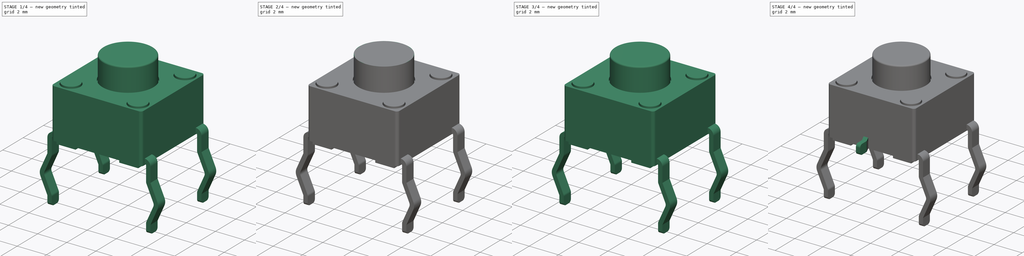
[diagram: build sequence overview — one tinted view per stage of 4, left to right]
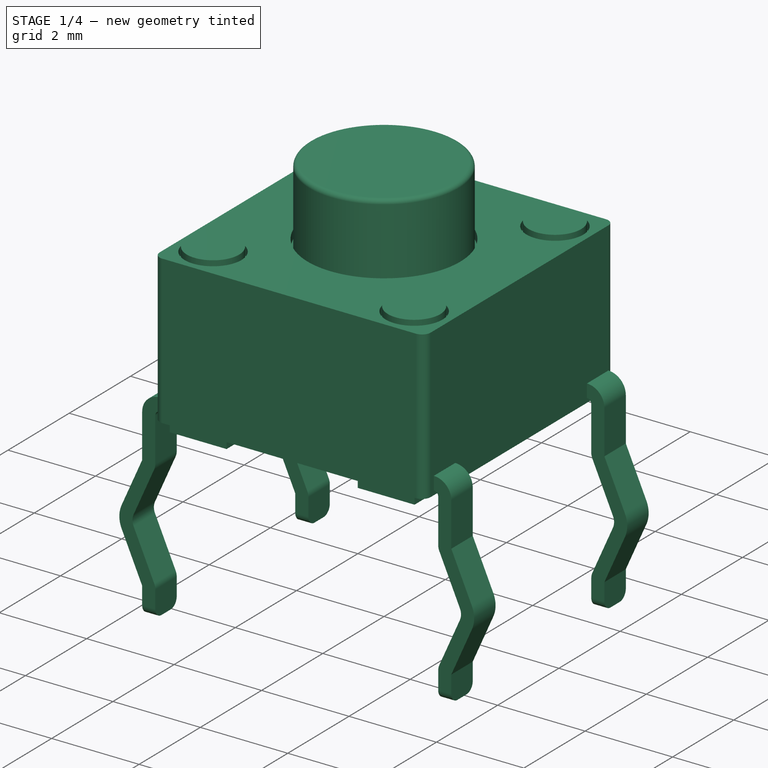
[diagram: stage 1 of 4 — iso view after this stage's code; geometry added in this stage tinted green]
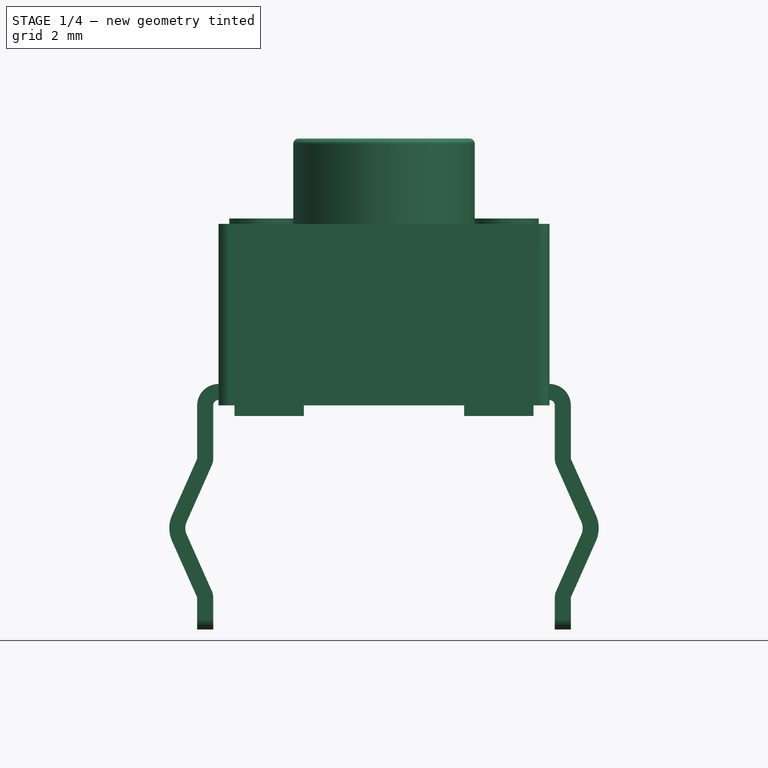
[diagram: stage 1 of 4 — front view after this stage's code; geometry added in this stage tinted green]
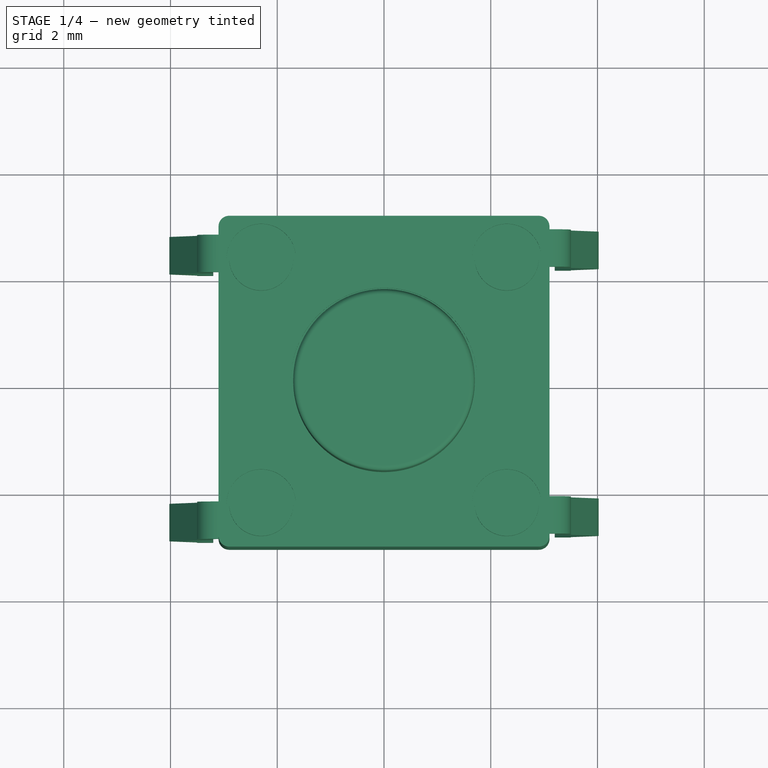
[diagram: stage 1 of 4 — top view after this stage's code; geometry added in this stage tinted green]
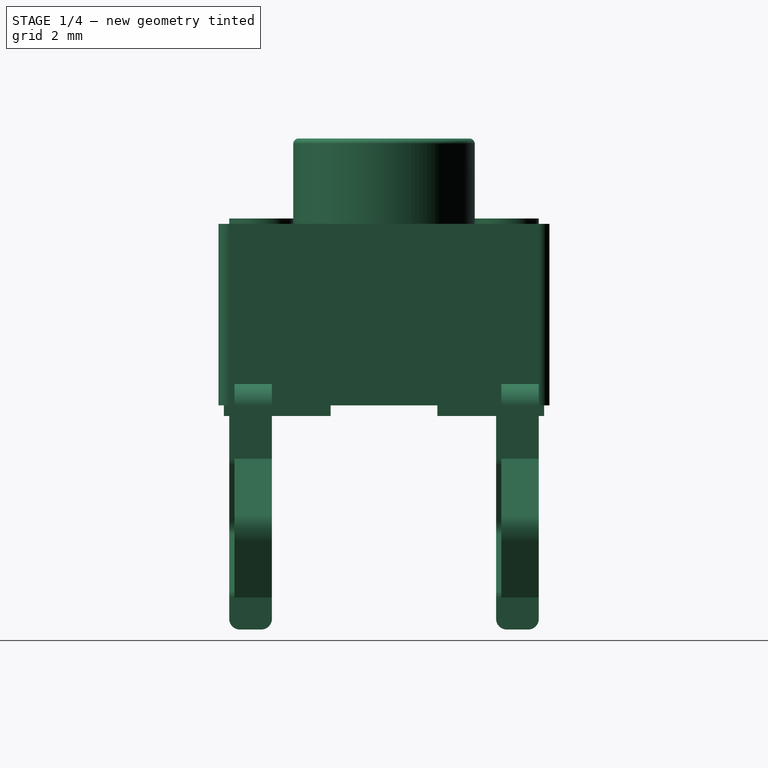
[diagram: stage 1 of 4 — right view after this stage's code; geometry added in this stage tinted green]
FCSTD DOCUMENT  (FreeCAD 0.14R3702 (Git))
Label: pushbutton-mini
License: CC-BY 3.0
LicenseURL: http://creativecommons.org/licenses/by/3.0/
objects: Sketcher::SketchObject×6, PartDesign::Pad×6, Part::Feature×6, App::DocumentObjectGroup×3, Part::Fillet×2, Part::Compound×1
note: 27 computed .brp shape members not serialized (recipe doc carries the construction recipe); baked Part::Feature solids carry a one-line shape summary decoded from their .brp

FEATURE [Sketcher::SketchObject] Sketch  label="main-body-sketch"
  sketch-geometry (8):
    g0: LineSegment StartX=-2.9 StartY=3.1 StartZ=0 EndX=2.9 EndY=3.1 EndZ=0
    g1: LineSegment StartX=3.1 StartY=2.9 StartZ=0 EndX=3.1 EndY=-2.9 EndZ=0
    g2: LineSegment StartX=2.9 StartY=-3.1 StartZ=0 EndX=-2.9 EndY=-3.1 EndZ=0
    g3: LineSegment StartX=-3.1 StartY=-2.9 StartZ=0 EndX=-3.1 EndY=2.9 EndZ=0
    g4: ArcOfCircle CenterX=-2.9 CenterY=2.9 CenterZ=0 NormalX=0 NormalY=0 NormalZ=1 Radius=0.2 StartAngle=1.5708 EndAngle=3.14159
    g5: ArcOfCircle CenterX=2.9 CenterY=2.9 CenterZ=0 NormalX=0 NormalY=0 NormalZ=1 Radius=0.2 StartAngle=0 EndAngle=1.5708
    g6: ArcOfCircle CenterX=2.9 CenterY=-2.9 CenterZ=0 NormalX=0 NormalY=0 NormalZ=1 Radius=0.2 StartAngle=4.71239 EndAngle=6.28319
    g7: ArcOfCircle CenterX=-2.9 CenterY=-2.9 CenterZ=0 NormalX=0 NormalY=0 NormalZ=1 Radius=0.2 StartAngle=3.14159 EndAngle=4.71239
  constraints (19):
    c: Horizontal(g0)
    c: Horizontal(g2)
    c: Vertical(g1)
    c: Vertical(g3)
    c: Equal(g0,g1)
    c: Tangent(g0,g4)
    c: Tangent(g3,g4)
    c: Radius(g4) = 0.2
    c: Tangent(g0,g5)
    c: Tangent(g1,g5)
    c: Tangent(g1,g6)
    c: Tangent(g2,g6)
    c: Tangent(g2,g7)
    c: Tangent(g3,g7)
    c: Symmetric(g4,g6,g-1)
    c: Equal(g5,g4)
    c: Equal(g4,g7)
    c: Equal(g7,g6)
    c: DistanceX(g3,g1) = 6.2
FEATURE [PartDesign::Pad] Pad  label="main-body"
  Length = 3.2
  Length2 = 100
  Sketch = -> Sketch
  Type = 0
FEATURE [App::DocumentObjectGroup] Group  label="button-body-src"
  Group = -> [Pad,Pad001,Pad002,Pad003,Fillet005]
FEATURE [Part::Feature] Fillet006  label="button-body"
  shape: bbox 6.2 x 6.2 x 5.2 mm, 41 faces (baked)
FEATURE [Part::Compound] Compound  label="pushbutton-mini"
  Links = -> [Fillet006,Fillet003,Fillet001,Fillet002,Fillet004,Pad003004]
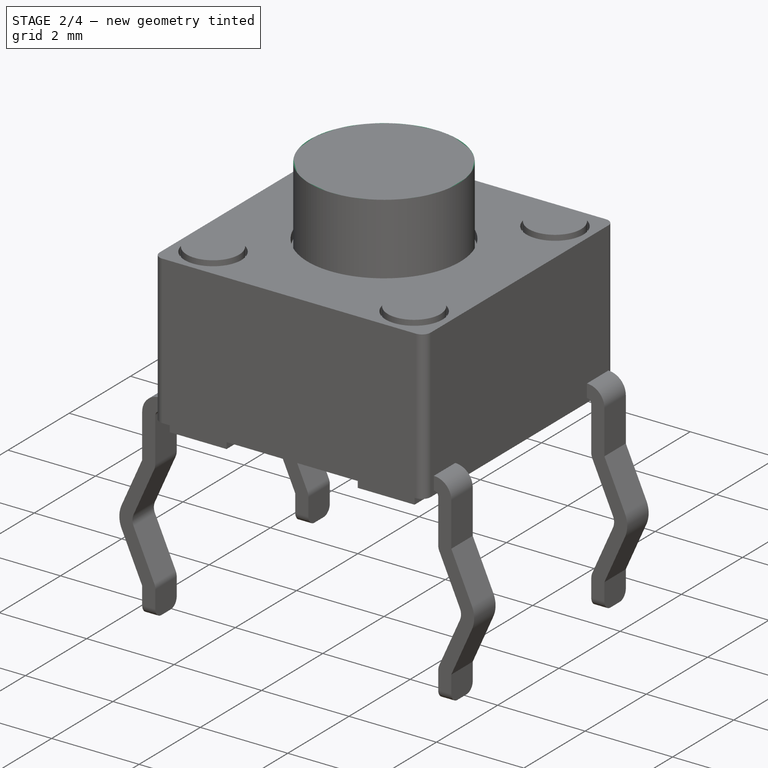
[diagram: stage 2 of 4 — iso view after this stage's code; geometry added in this stage tinted green]
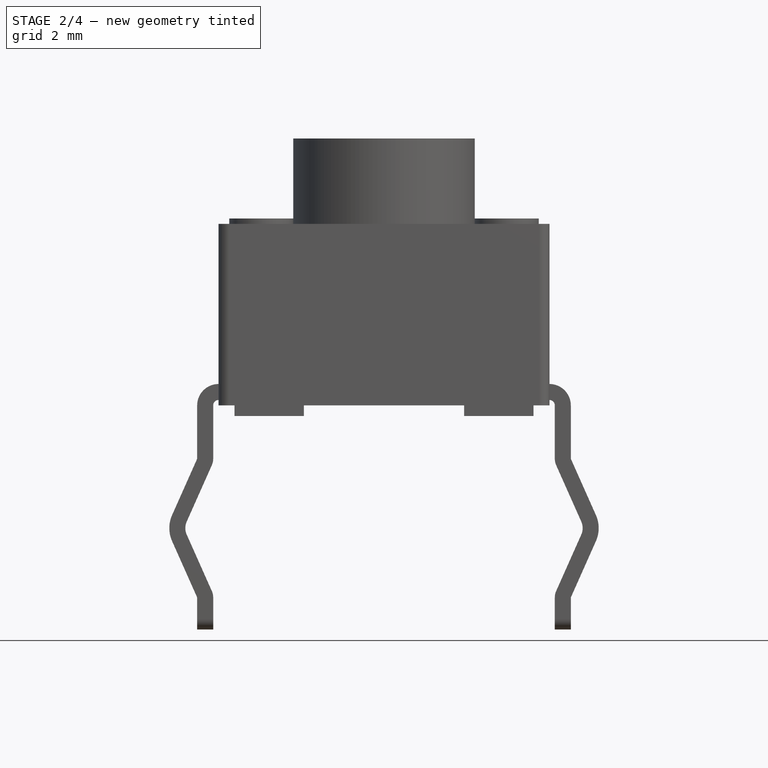
[diagram: stage 2 of 4 — front view after this stage's code; geometry added in this stage tinted green]
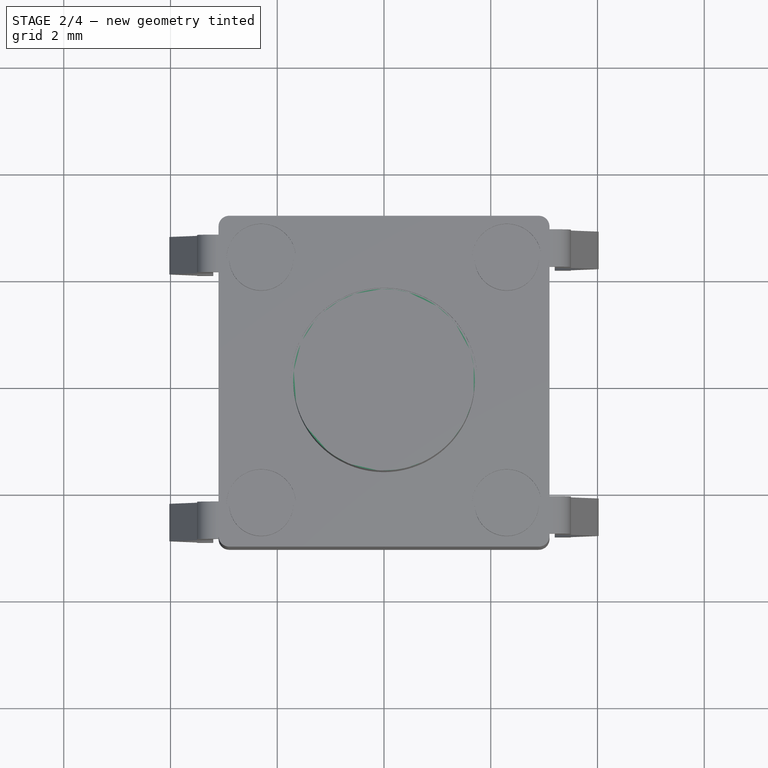
[diagram: stage 2 of 4 — top view after this stage's code; geometry added in this stage tinted green]
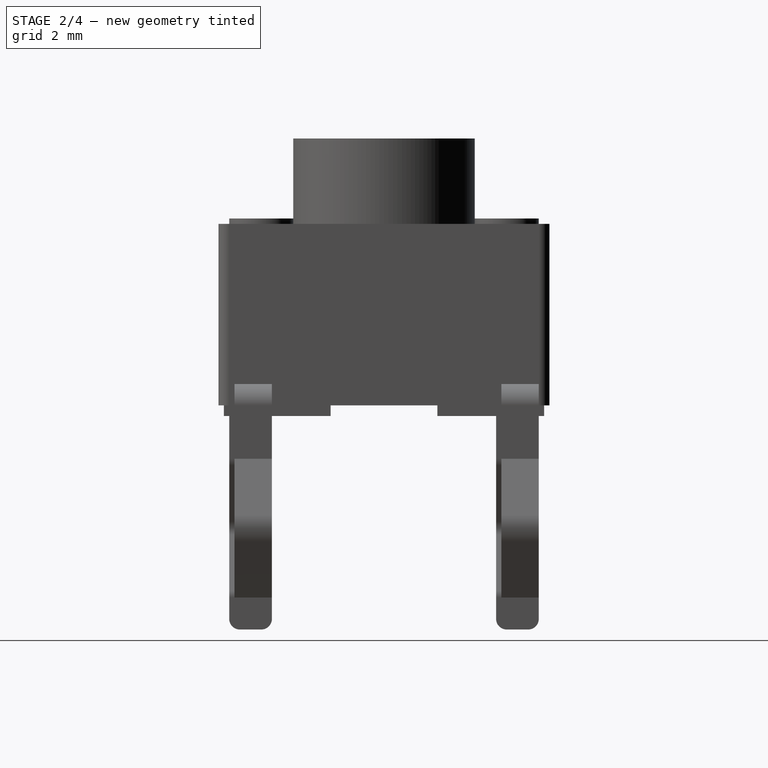
[diagram: stage 2 of 4 — right view after this stage's code; geometry added in this stage tinted green]
FEATURE [Sketcher::SketchObject] Sketch001  label="bottom-legs-sketch"
  ExternalGeometry = -> [Pad]
  Placement = pos=(0,0,0) rot=(1,0,0;3.14159rad)
  Support = -> Pad [Face9]
  sketch-geometry (16):
    g0: LineSegment StartX=-2.8 StartY=3 StartZ=0 EndX=-1.5 EndY=3 EndZ=0
    g1: LineSegment StartX=-1.5 StartY=3 StartZ=0 EndX=-1.5 EndY=1 EndZ=0
    g2: LineSegment StartX=-1.5 StartY=1 StartZ=0 EndX=-2.8 EndY=1 EndZ=0
    g3: LineSegment StartX=-2.8 StartY=1 StartZ=0 EndX=-2.8 EndY=3 EndZ=0
    g4: LineSegment StartX=1.5 StartY=3 StartZ=0 EndX=2.8 EndY=3 EndZ=0
    g5: LineSegment StartX=2.8 StartY=3 StartZ=0 EndX=2.8 EndY=1 EndZ=0
    g6: LineSegment StartX=2.8 StartY=1 StartZ=0 EndX=1.5 EndY=1 EndZ=0
    g7: LineSegment StartX=1.5 StartY=1 StartZ=0 EndX=1.5 EndY=3 EndZ=0
    g8: LineSegment StartX=-2.8 StartY=-1 StartZ=0 EndX=-1.5 EndY=-1 EndZ=0
    g9: LineSegment StartX=-1.5 StartY=-1 StartZ=0 EndX=-1.5 EndY=-3 EndZ=0
    g10: LineSegment StartX=-1.5 StartY=-3 StartZ=0 EndX=-2.8 EndY=-3 EndZ=0
    g11: LineSegment StartX=-2.8 StartY=-3 StartZ=0 EndX=-2.8 EndY=-1 EndZ=0
    g12: LineSegment StartX=1.5 StartY=-1 StartZ=0 EndX=2.8 EndY=-1 EndZ=0
    g13: LineSegment StartX=2.8 StartY=-1 StartZ=0 EndX=2.8 EndY=-3 EndZ=0
    g14: LineSegment StartX=2.8 StartY=-3 StartZ=0 EndX=1.5 EndY=-3 EndZ=0
    g15: LineSegment StartX=1.5 StartY=-3 StartZ=0 EndX=1.5 EndY=-1 EndZ=0
  constraints (45):
    c: Coincident(g0,g1)
    c: Coincident(g1,g2)
    c: Coincident(g2,g3)
    c: Coincident(g3,g0)
    c: Horizontal(g0)
    c: Horizontal(g2)
    c: Vertical(g1)
    c: Vertical(g3)
    c: DistanceX(g0) = 1.3
    c: DistanceY(g1) = -2
    c: DistanceX(g-3,g2) = 0.3
    c: DistanceY(g0,g-4) = 0.1
    c: Coincident(g4,g5)
    c: Coincident(g5,g6)
    c: Coincident(g6,g7)
    c: Coincident(g7,g4)
    c: Horizontal(g4)
    c: Horizontal(g6)
    c: Vertical(g5)
    c: Vertical(g7)
    c: Coincident(g8,g9)
    c: Coincident(g9,g10)
    c: Coincident(g10,g11)
    c: Coincident(g11,g8)
    c: Horizontal(g8)
    c: Horizontal(g10)
    c: Vertical(g9)
    c: Vertical(g11)
    c: Coincident(g12,g13)
    c: Coincident(g13,g14)
    c: Coincident(g14,g15)
    c: Coincident(g15,g12)
    c: Horizontal(g12)
    c: Horizontal(g14)
    c: Vertical(g13)
    c: Vertical(g15)
    c: Equal(g0,g4)
    c: Equal(g4,g12)
    c: Equal(g12,g8)
    c: Equal(g1,g7)
    c: Equal(g7,g9)
    c: Equal(g9,g15)
    c: Symmetric(g0,g10,g-1)
    c: Symmetric(g13,g10,g-2)
    c: Symmetric(g4,g13,g-1)
FEATURE [PartDesign::Pad] Pad001  label="botom-legs"
  Length = 0.2
  Length2 = 100
  Sketch = -> Sketch001
  Type = 0
FEATURE [Sketcher::SketchObject] Sketch002  label="button-sketch"
  Placement = pos=(0,0,3.2) rot=(0,0,1;0rad)
  Support = -> Pad001 [Face5]
  sketch-geometry (1):
    g0: Circle CenterX=0 CenterY=0 CenterZ=0 NormalX=0 NormalY=0 NormalZ=1 Radius=1.7
  constraints (2):
    c: Radius(g0) = 1.7
    c: Coincident(g0,g-1)
FEATURE [PartDesign::Pad] Pad002  label="button"
  Length = 1.8
  Length2 = 100
  Sketch = -> Sketch002
  Type = 0
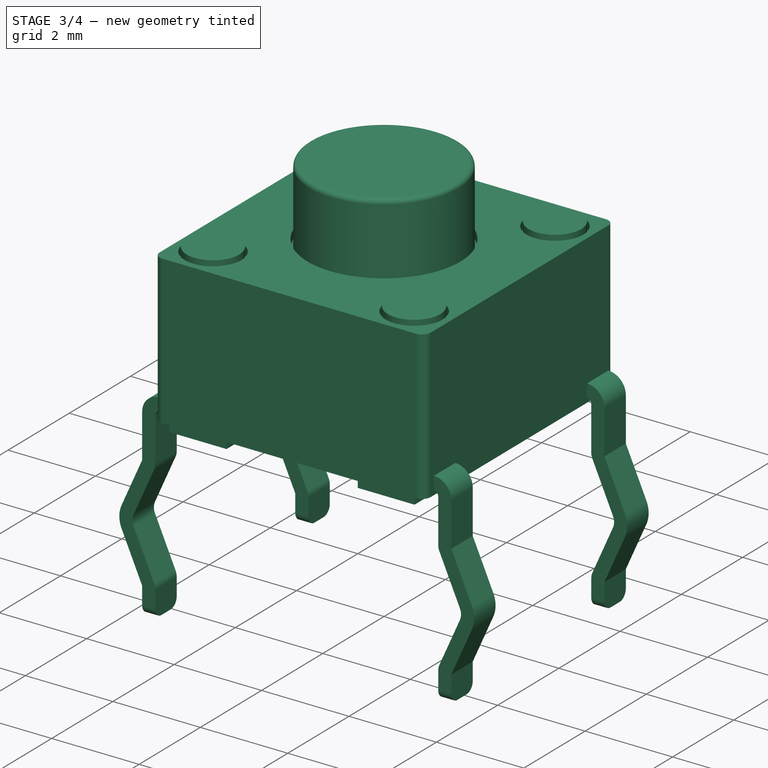
[diagram: stage 3 of 4 — iso view after this stage's code; geometry added in this stage tinted green]
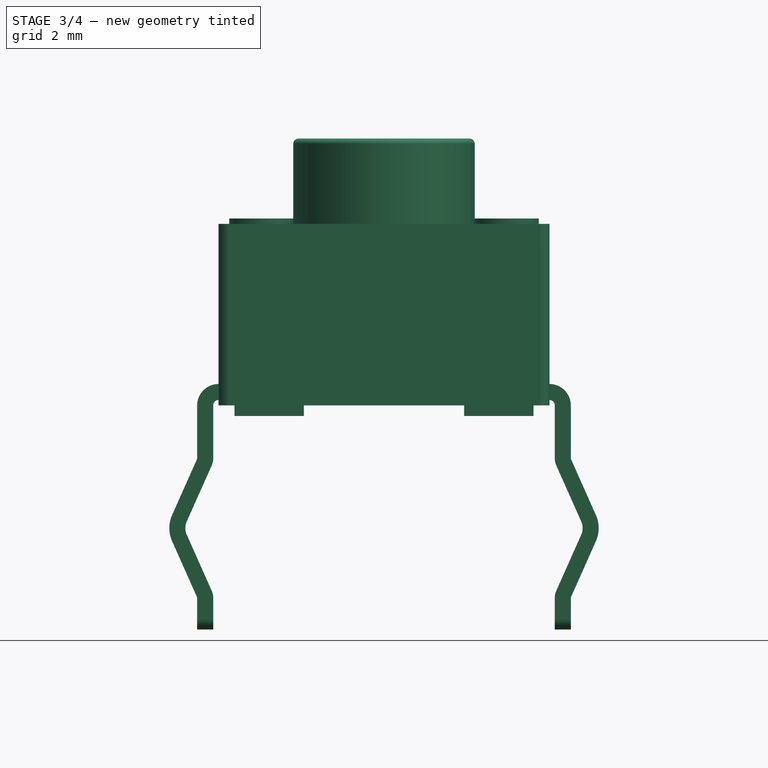
[diagram: stage 3 of 4 — front view after this stage's code; geometry added in this stage tinted green]
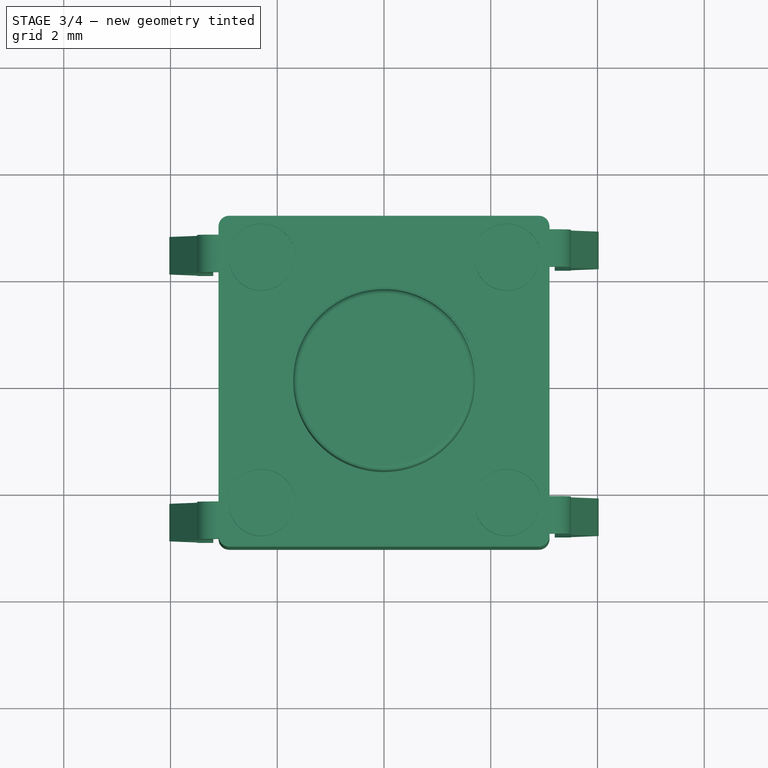
[diagram: stage 3 of 4 — top view after this stage's code; geometry added in this stage tinted green]
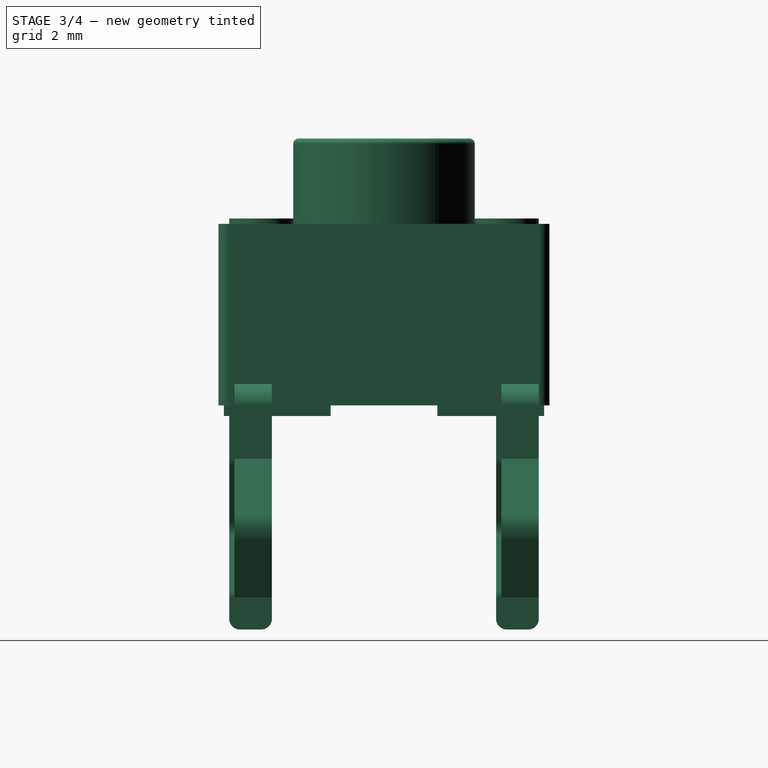
[diagram: stage 3 of 4 — right view after this stage's code; geometry added in this stage tinted green]
FEATURE [Sketcher::SketchObject] Sketch003  label="top-pins-sketch"
  ExternalGeometry = -> [Pad002]
  Placement = pos=(0,0,3.2) rot=(0,0,1;0rad)
  Support = -> Pad002 [Face5]
  sketch-geometry (4):
    g0: Circle CenterX=-2.3 CenterY=2.3 CenterZ=0 NormalX=0 NormalY=0 NormalZ=1 Radius=0.6
    g1: Circle CenterX=2.3 CenterY=2.3 CenterZ=0 NormalX=0 NormalY=0 NormalZ=1 Radius=0.6
    g2: Circle CenterX=-2.3 CenterY=-2.3 CenterZ=0 NormalX=0 NormalY=0 NormalZ=1 Radius=0.6
    g3: Circle CenterX=2.3 CenterY=-2.3 CenterZ=0 NormalX=0 NormalY=0 NormalZ=1 Radius=0.6
  constraints (9):
    c: Radius(g0) = 0.6
    c: DistanceX(g0,g-3) = -0.8
    c: DistanceY(g0,g-4) = 0.8
    c: Equal(g0,g1)
    c: Equal(g1,g3)
    c: Equal(g3,g2)
    c: Symmetric(g0,g1,g-2)
    c: Symmetric(g0,g2,g-1)
    c: Symmetric(g2,g3,g-2)
FEATURE [PartDesign::Pad] Pad003  label="top-pins"
  Length = 0.3
  Length2 = 100
  Sketch = -> Sketch003
  Type = 0
FEATURE [Part::Feature] Fillet001  label="pin-1"
  Placement = pos=(-3.2,-2.2,0) rot=(1,0,0;1.5708rad)
  shape: bbox 0.922 x 0.7 x 4.6 mm, 20 faces (baked)
FEATURE [Part::Feature] Fillet002  label="pin-002"
  Placement = pos=(-3.2,2.8,0) rot=(1,0,0;1.5708rad)
  shape: bbox 0.922 x 0.7 x 4.6 mm, 20 faces (baked)
FEATURE [Part::Feature] Fillet003  label="pin-003"
  Placement = pos=(3.2,-2.8,0) rot=(0,0.707107,0.707107;3.14159rad)
  shape: bbox 0.922 x 0.7 x 4.6 mm, 20 faces (baked)
FEATURE [Part::Feature] Fillet004  label="pin-004"
  Placement = pos=(3.2,2.2,0) rot=(0,0.707107,0.707107;3.14159rad)
  shape: bbox 0.922 x 0.7 x 4.6 mm, 20 faces (baked)
FEATURE [Sketcher::SketchObject] Sketch005  label="top-metal-plate-sketch"
  Placement = pos=(0,0,3.2) rot=(0,0,1;0rad)
  sketch-geometry (13):
    g0: LineSegment StartX=-2.9 StartY=3.1 StartZ=0 EndX=2.9 EndY=3.1 EndZ=0
    g1: LineSegment StartX=3.1 StartY=2.9 StartZ=0 EndX=3.1 EndY=-2.9 EndZ=0
    g2: LineSegment StartX=2.9 StartY=-3.1 StartZ=0 EndX=-2.9 EndY=-3.1 EndZ=0
    g3: LineSegment StartX=-3.1 StartY=-2.9 StartZ=0 EndX=-3.1 EndY=2.9 EndZ=0
    g4: ArcOfCircle CenterX=-2.9 CenterY=2.9 CenterZ=0 NormalX=0 NormalY=0 NormalZ=1 Radius=0.2 StartAngle=1.5708 EndAngle=3.14159
    g5: ArcOfCircle CenterX=2.9 CenterY=2.9 CenterZ=0 NormalX=0 NormalY=0 NormalZ=1 Radius=0.2 StartAngle=0 EndAngle=1.5708
    g6: ArcOfCircle CenterX=2.9 CenterY=-2.9 CenterZ=0 NormalX=0 NormalY=0 NormalZ=1 Radius=0.2 StartAngle=4.71239 EndAngle=6.28319
    g7: ArcOfCircle CenterX=-2.9 CenterY=-2.9 CenterZ=0 NormalX=0 NormalY=0 NormalZ=1 Radius=0.2 StartAngle=3.14159 EndAngle=4.71239
    g8: Circle CenterX=0 CenterY=0 CenterZ=0 NormalX=0 NormalY=0 NormalZ=1 Radius=1.75
    g9: Circle CenterX=-2.3 CenterY=2.3 CenterZ=0 NormalX=0 NormalY=0 NormalZ=1 Radius=0.65
    g10: Circle CenterX=2.3 CenterY=2.3 CenterZ=0 NormalX=0 NormalY=0 NormalZ=1 Radius=0.65
    g11: Circle CenterX=-2.3 CenterY=-2.3 CenterZ=0 NormalX=0 NormalY=0 NormalZ=1 Radius=0.65
    g12: Circle CenterX=2.3 CenterY=-2.3 CenterZ=0 NormalX=0 NormalY=0 NormalZ=1 Radius=0.65
  constraints (30):
    c: Horizontal(g0)
    c: Horizontal(g2)
    c: Vertical(g1)
    c: Vertical(g3)
    c: Tangent(g0,g4)
    c: Tangent(g3,g4)
    c: Tangent(g0,g5)
    c: Tangent(g1,g5)
    c: Tangent(g1,g6)
    c: Tangent(g2,g6)
    c: Tangent(g2,g7)
    c: Tangent(g3,g7)
    c: Symmetric(g4,g6,g-1)
    c: Radius(g4) = 0.2
    c: Equal(g4,g5)
    c: Equal(g5,g6)
    c: Equal(g6,g7)
    c: DistanceX(g3,g1) = 6.2
    c: Equal(g0,g3)
    c: Coincident(g8,g-1)
    c: Radius(g8) = 1.75
    c: DistanceX(g3,g9) = 0.8
    c: Radius(g9) = 0.65
    c: DistanceY(g9,g0) = 0.8
    c: Equal(g9,g10)
    c: Equal(g10,g12)
    c: Equal(g12,g11)
    c: Symmetric(g9,g10,g-2)
    c: Symmetric(g9,g11,g-1)
    c: Symmetric(g11,g12,g-2)
FEATURE [App::DocumentObjectGroup] Group001  label="pin-src"
  Group = -> [Fillet]
FEATURE [PartDesign::Pad] Pad003003  label="top-metal-plate"
  Length = 0.2
  Length2 = 100
  Placement = pos=(0,0,3.2) rot=(0,0,1;0rad)
  Sketch = -> Sketch005
  Type = 0
FEATURE [App::DocumentObjectGroup] Group002  label="top-metal-plate-src"
  Group = -> [Pad003003]
FEATURE [Part::Feature] Pad003004  label="top-metal-plate001"
  Placement = pos=(0,0,3.2) rot=(0,0,1;0rad)
  shape: bbox 6.2 x 6.2 x 0.2 mm, 15 faces (baked)
FEATURE [Part::Fillet] Fillet005
  Base = -> Pad003
  Edges = 1 edges r=0.1: [Edge79]
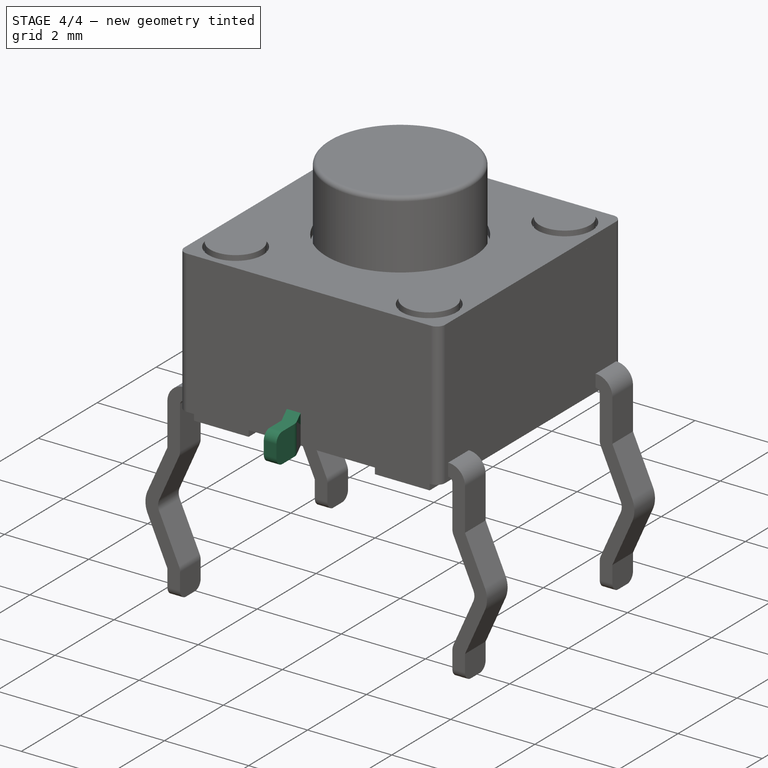
[diagram: stage 4 of 4 — iso view after this stage's code; geometry added in this stage tinted green]
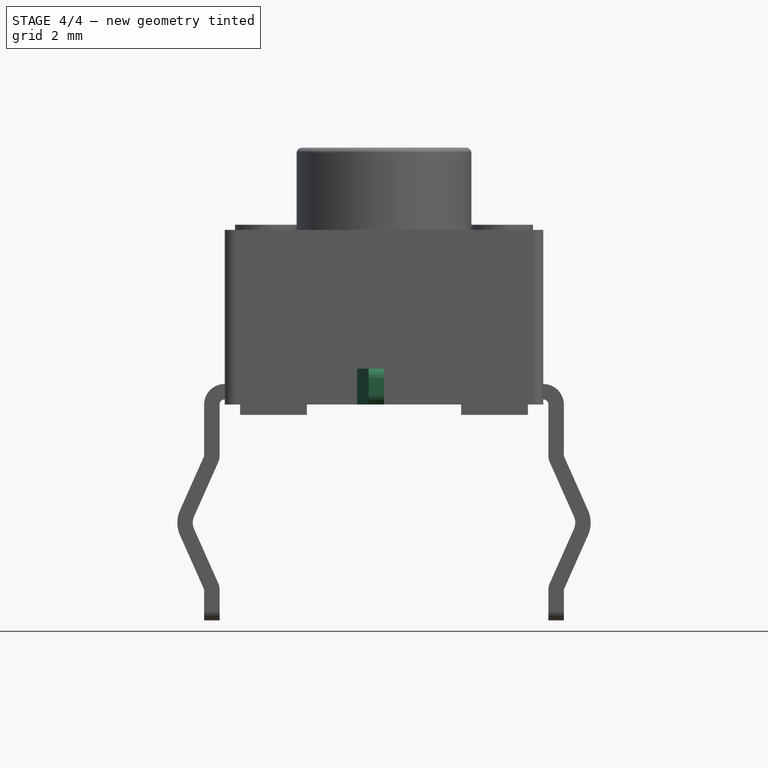
[diagram: stage 4 of 4 — front view after this stage's code; geometry added in this stage tinted green]
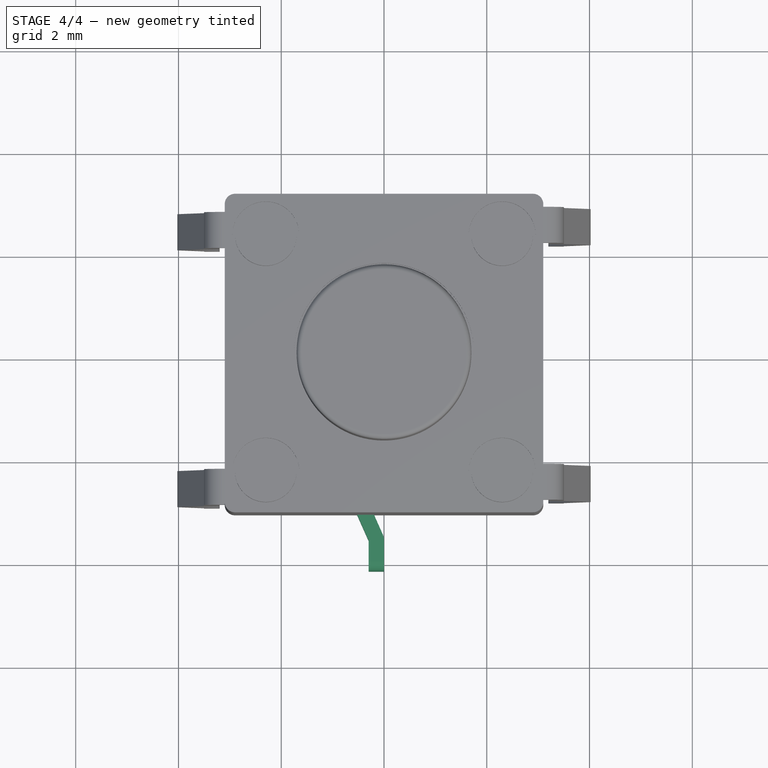
[diagram: stage 4 of 4 — top view after this stage's code; geometry added in this stage tinted green]
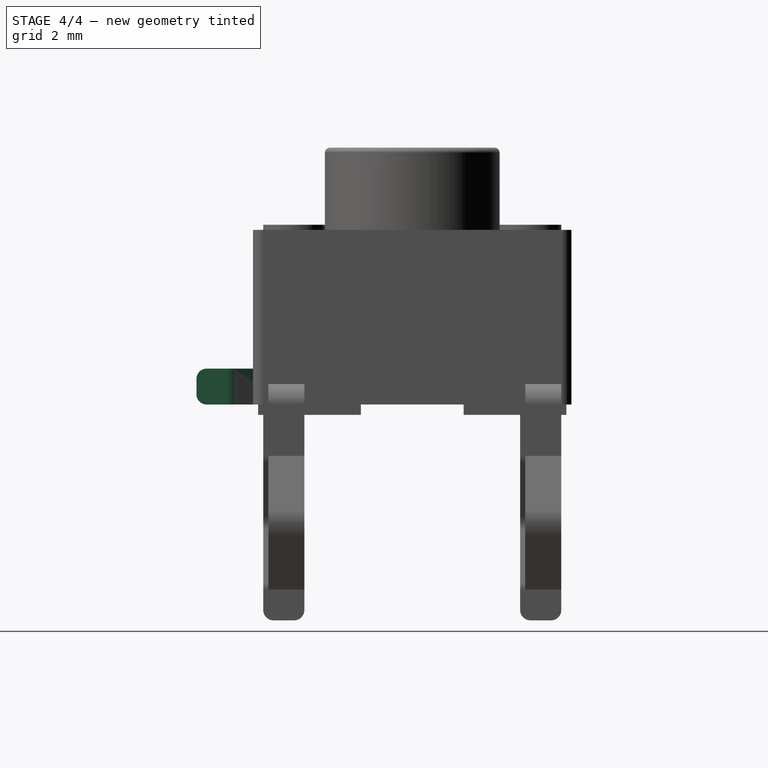
[diagram: stage 4 of 4 — right view after this stage's code; geometry added in this stage tinted green]
FEATURE [Sketcher::SketchObject] Sketch004
  sketch-geometry (19):
    g0: LineSegment StartX=0 StartY=0 StartZ=0 EndX=0 EndY=-1 EndZ=0
    g1: LineSegment StartX=-0.0259364 StartY=-1.12202 StartZ=0 EndX=-0.496079 EndY=-2.17798 EndZ=0
    g2: LineSegment StartX=-0.496079 StartY=-2.42202 StartZ=0 EndX=-0.0259364 EndY=-3.47798 EndZ=0
    g3: LineSegment StartX=0 StartY=-3.6 StartZ=0 EndX=0 EndY=-4.2 EndZ=0
    g4: ArcOfCircle CenterX=0.1 CenterY=0 CenterZ=0 NormalX=0 NormalY=0 NormalZ=1 Radius=0.1 StartAngle=1.5708 EndAngle=3.14159
    g5: LineSegment [constr] StartX=0.1 StartY=0.1 StartZ=0 EndX=0.1 EndY=0 EndZ=0
    g6: ArcOfCircle CenterX=0.1 CenterY=0 CenterZ=0 NormalX=0 NormalY=0 NormalZ=1 Radius=0.4 StartAngle=1.5708 EndAngle=3.14159
    g7: LineSegment StartX=0.1 StartY=0.4 StartZ=0 EndX=0.1 EndY=0.1 EndZ=0
    g8: LineSegment [constr] StartX=0 StartY=-2.3 StartZ=0 EndX=1.16033 EndY=-2.3 EndZ=0
    g9: ArcOfCircle CenterX=-0.222016 CenterY=-2.3 CenterZ=0 NormalX=0 NormalY=0 NormalZ=1 Radius=0.3 StartAngle=2.72271 EndAngle=3.56047
    g10: LineSegment StartX=-0.3 StartY=0 StartZ=0 EndX=-0.3 EndY=-1 EndZ=0
    g11: LineSegment StartX=-0.3 StartY=-1 StartZ=0 EndX=-0.770143 EndY=-2.05596 EndZ=0
    g12: LineSegment [constr] StartX=0.368042 StartY=0.500446 StartZ=0 EndX=0.642105 EndY=0.378425 EndZ=0
    g13: ArcOfCircle CenterX=-0.3 CenterY=-1 CenterZ=0 NormalX=0 NormalY=0 NormalZ=1 Radius=0.3 StartAngle=5.86431 EndAngle=6.28319
    g14: LineSegment StartX=-0.770143 StartY=-2.54404 StartZ=0 EndX=-0.3 EndY=-3.6 EndZ=0
    g15: ArcOfCircle CenterX=-0.222016 CenterY=-2.3 CenterZ=0 NormalX=0 NormalY=0 NormalZ=1 Radius=0.6 StartAngle=2.72271 EndAngle=3.56047
    g16: LineSegment StartX=0 StartY=-4.2 StartZ=0 EndX=-0.3 EndY=-4.2 EndZ=0
    g17: LineSegment StartX=-0.3 StartY=-4.2 StartZ=0 EndX=-0.3 EndY=-3.6 EndZ=0
    g18: ArcOfCircle CenterX=-0.3 CenterY=-3.6 CenterZ=0 NormalX=0 NormalY=0 NormalZ=1 Radius=0.3 StartAngle=0 EndAngle=0.418879
  constraints (50):
    c: Coincident(g0,g-1)
    c: Vertical(g3)
    c: Radius(g4) = 0.1
    c: Coincident(g4,g-1)
    c: PointOnObject(g4,g-1)
    c: Vertical(g5)
    c: Coincident(g5,g4)
    c: Coincident(g5,g4)
    c: Coincident(g6,g4)
    c: PointOnObject(g6,g-1)
    c: PointOnObject(g6,g5)
    c: Radius(g6) = 0.4
    c: Vertical(g7)
    c: Coincident(g7,g6)
    c: Coincident(g7,g4)
    c: Horizontal(g8)
    c: PointOnObject(g8,g-2)
    c: Angle(g-2,g1) = 2.72271
    c: Tangent(g1,g9)
    c: Tangent(g2,g9)
    c: PointOnObject(g9,g8)
    c: Radius(g9) = 0.3
    c: Vertical(g10)
    c: Coincident(g10,g6)
    c: Coincident(g11,g10)
    c: Parallel(g11,g1)
    c: PointOnObject(g12,g11)
    c: Perpendicular(g12,g11)
    c: PointOnObject(g12,g1)
    c: Distance(g12) = 0.3
    c: Tangent(g0,g13)
    c: Tangent(g1,g13)
    c: Coincident(g13,g10)
    c: DistanceY(g10,g8) = -1.3
    c: Symmetric(g10,g14,g8)
    c: Tangent(g11,g15)
    c: Tangent(g14,g15)
    c: DistanceY(g0) = -1
    c: Coincident(g15,g9)
    c: DistanceY(g6,g3) = -4.6
    c: Coincident(g16,g17)
    c: Horizontal(g16)
    c: Vertical(g17)
    c: Coincident(g16,g3)
    c: Coincident(g14,g17)
    c: Tangent(g2,g18)
    c: Tangent(g3,g18)
    c: Equal(g13,g18)
    c: Coincident(g18,g14)
    c: Symmetric(g3,g0,g8)
FEATURE [PartDesign::Pad] Pad003002
  Length = 0.7
  Length2 = 100
  Sketch = -> Sketch004
  Type = 0
FEATURE [Part::Fillet] Fillet
  Base = -> Pad003002
  Edges = 2 edges r=0.2: [Edge30,Edge31]
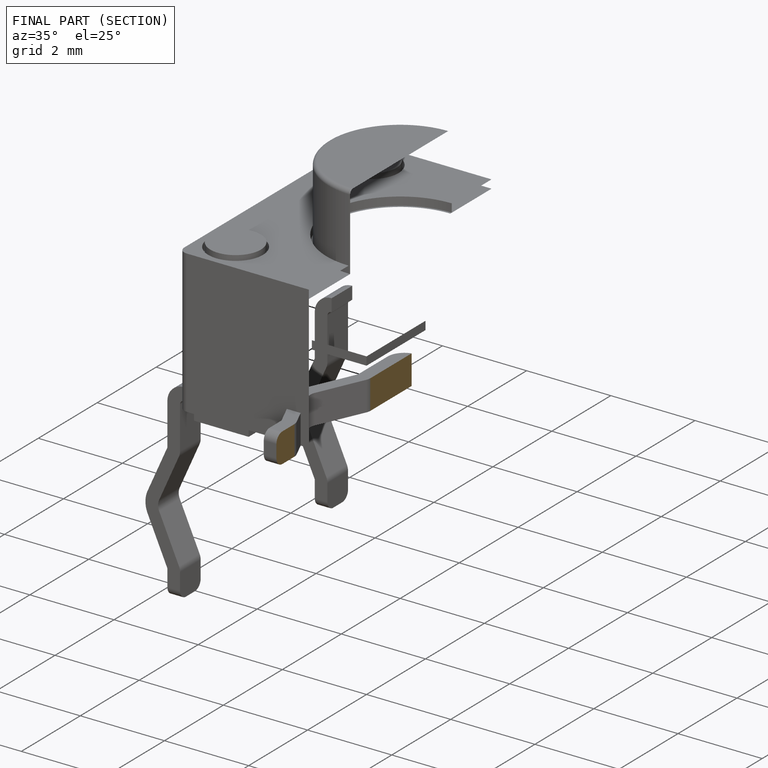
[diagram: finished part — half-section view (interior)]
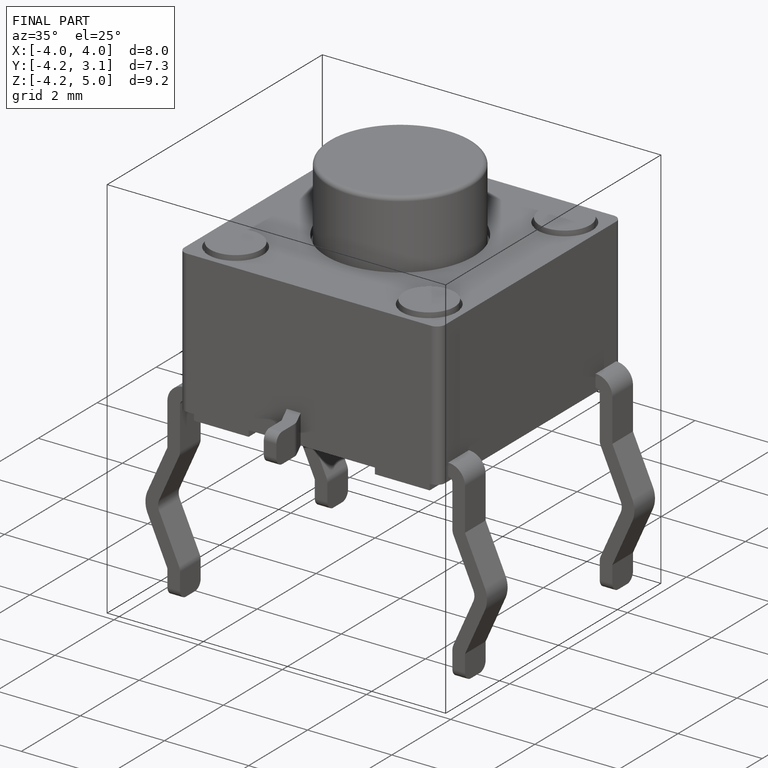
[diagram: finished part — iso view with bounding-box wireframe]
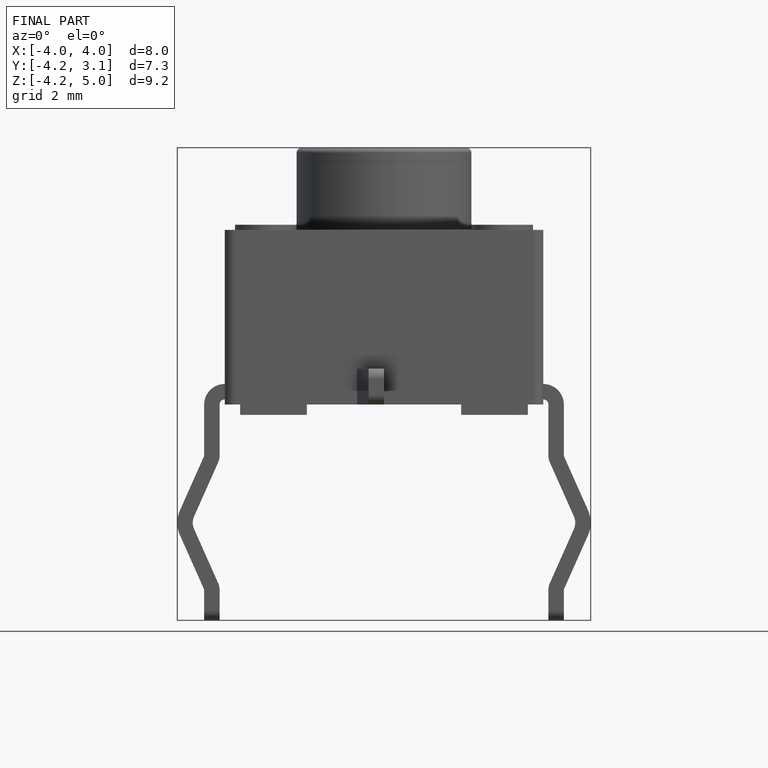
[diagram: finished part — front view with bounding-box wireframe]
